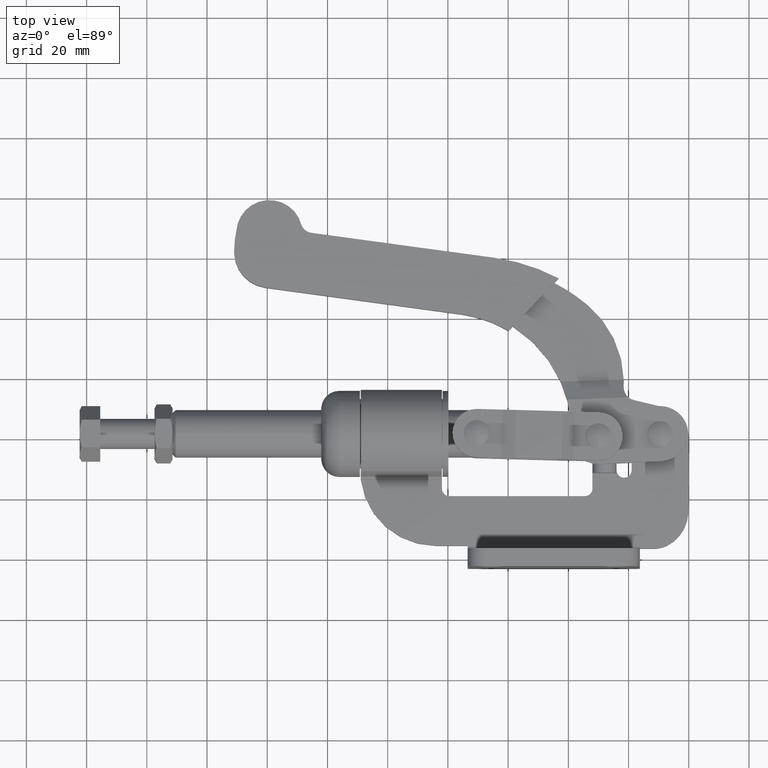
[diagram: clean part render]
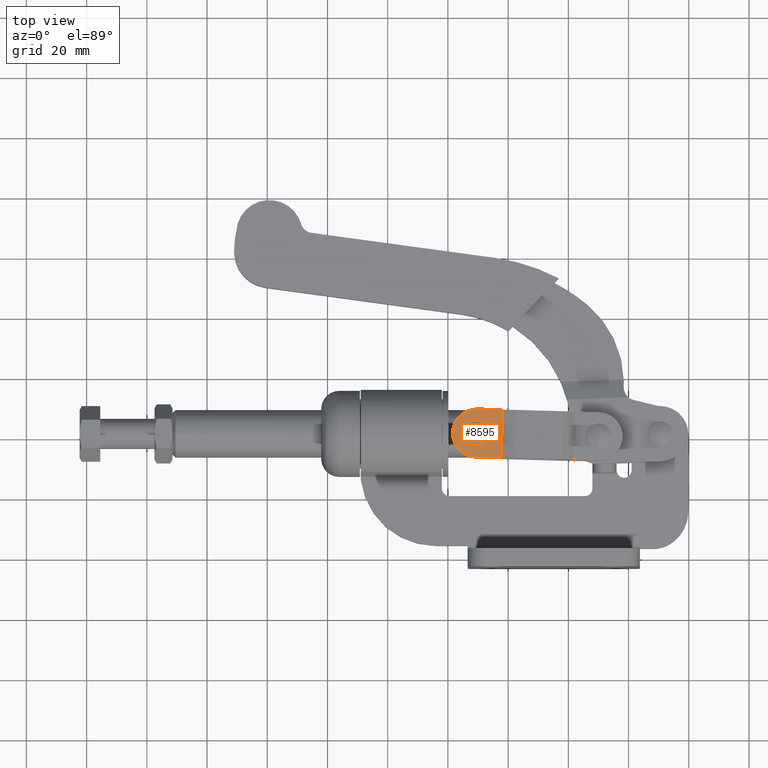
[diagram: same view with one face highlighted and labeled with its STEP entity id]
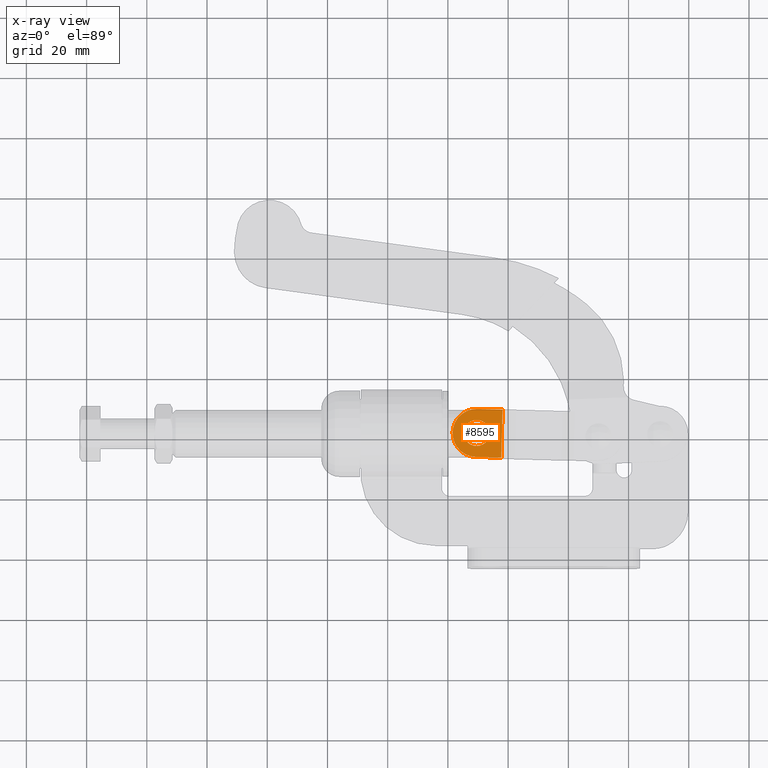
[diagram: x-ray of the same camera — body ghosted, the highlighted face saturated]
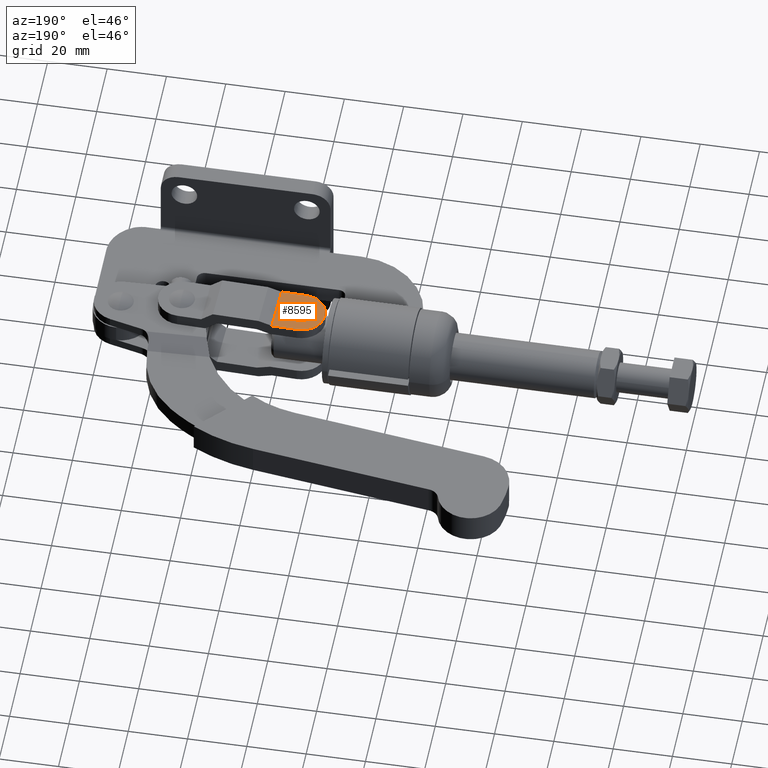
[diagram: same view with one face highlighted and labeled with its STEP entity id]
A machine part, top view. The second image highlights one B-rep face of the part: STEP entity #8595.
The next image is the same camera in x-ray: the body ghosted, the highlighted face saturated — about 0% of this face is hidden behind the body in this view.
A second angle (auxiliary view) of the same face is appended — the face is thin or edge-on in the first view.
In plain terms, the highlighted planar face has unit normal (0, 0, -1).
Its self-contained STEP definition (entity closure, byte-faithful):
#53 = ORIENTED_EDGE ( 'NONE', *, *, #1765, .F. ) ;
#160 = AXIS2_PLACEMENT_3D ( 'NONE', #5768, #1270, #6516 ) ;
#194 = ORIENTED_EDGE ( 'NONE', *, *, #4978, .T. ) ;
#202 = FACE_OUTER_BOUND ( 'NONE', #5282, .T. ) ;
#262 = AXIS2_PLACEMENT_3D ( 'NONE', #7146, #2658, #7905 ) ;
#299 = ORIENTED_EDGE ( 'NONE', *, *, #8065, .F. ) ;
#465 = CARTESIAN_POINT ( 'NONE',  ( -70.46971373799989600, 45.82012701892206500, 11.85000000000000000 ) ) ;
#714 = ORIENTED_EDGE ( 'NONE', *, *, #8456, .F. ) ;
#910 = CIRCLE ( 'NONE', #160, 4.330127018921908500 ) ;
#1085 = VERTEX_POINT ( 'NONE', #4931 ) ;
#1138 = CIRCLE ( 'NONE', #1781, 8.000000000000001800 ) ;
#1270 = DIRECTION ( 'NONE',  ( -3.235760592315507000E-015, -3.440667993655728600E-017, 1.000000000000000000 ) ) ;
#1503 = CIRCLE ( 'NONE', #262, 8.000000000000001800 ) ;
#1568 = DIRECTION ( 'NONE',  ( 3.235760592315507000E-015, 3.440667993655728600E-017, -1.000000000000000000 ) ) ;
#1765 = EDGE_CURVE ( 'NONE', #5473, #8336, #7983, .T. ) ;
#1781 = AXIS2_PLACEMENT_3D ( 'NONE', #6077, #1568, #6805 ) ;
#1874 = DIRECTION ( 'NONE',  ( -3.235760592315507000E-015, -3.440667993655728600E-017, 1.000000000000000000 ) ) ;
#1959 = LINE ( 'NONE', #8794, #7710 ) ;
#2588 = DIRECTION ( 'NONE',  ( 0.02691358024692456700, 0.9996377639916832500, 1.214801189592771400E-016 ) ) ;
#2599 = CARTESIAN_POINT ( 'NONE',  ( -61.84452790548348100, 49.26068018912577200, 11.85000000000003000 ) ) ;
#2658 = DIRECTION ( 'NONE',  ( 3.235760592315507000E-015, 3.440667993655728600E-017, -1.000000000000000000 ) ) ;
#3735 = LINE ( 'NONE', #2599, #3960 ) ;
#3752 = VERTEX_POINT ( 'NONE', #6775 ) ;
#3960 = VECTOR ( 'NONE', #4105, 1000.000000000000100 ) ;
#4097 = EDGE_CURVE ( 'NONE', #8338, #3752, #3735, .T. ) ;
#4105 = DIRECTION ( 'NONE',  ( -0.9996377639916832500, 0.02691358024692456700, -3.233662476373172700E-015 ) ) ;
#4113 = EDGE_CURVE ( 'NONE', #6571, #3752, #1503, .T. ) ;
#4128 = VECTOR ( 'NONE', #2588, 1000.000000000000100 ) ;
#4376 = LINE ( 'NONE', #6333, #4128 ) ;
#4713 = DIRECTION ( 'NONE',  ( 0.9996377639916832500, -0.02691358024692457100, 3.233662476373173100E-015 ) ) ;
#4868 = EDGE_LOOP ( 'NONE', ( #53, #6510 ) ) ;
#4931 = CARTESIAN_POINT ( 'NONE',  ( -62.27514518943427600, 33.26647596525883400, 11.85000000000002500 ) ) ;
#4978 = EDGE_CURVE ( 'NONE', #1085, #8338, #4376, .T. ) ;
#5282 = EDGE_LOOP ( 'NONE', ( #714, #299, #194, #9462, #5733 ) ) ;
#5414 = PLANE ( 'NONE',  #6316 ) ;
#5473 = VERTEX_POINT ( 'NONE', #465 ) ;
#5650 = CARTESIAN_POINT ( 'NONE',  ( -70.68502237997570600, 33.49289788806675000, 11.85000000000000000 ) ) ;
#5733 = ORIENTED_EDGE ( 'NONE', *, *, #4113, .F. ) ;
#5768 = CARTESIAN_POINT ( 'NONE',  ( -70.46971373799988200, 41.49000000000016500, 11.84999999999999800 ) ) ;
#5809 = DIRECTION ( 'NONE',  ( -0.9996377639916832500, 0.02691358024692456700, -3.233662476373172700E-015 ) ) ;
#5914 = CARTESIAN_POINT ( 'NONE',  ( -70.46971373799989600, 37.15987298107826600, 11.85000000000000000 ) ) ;
#6077 = CARTESIAN_POINT ( 'NONE',  ( -70.46971373799986800, 41.49000000000022200, 11.85000000000000300 ) ) ;
#6316 = AXIS2_PLACEMENT_3D ( 'NONE', #6930, #9209, #4713 ) ;
#6333 = CARTESIAN_POINT ( 'NONE',  ( -62.27514518943427600, 33.26647596525883400, 11.85000000000002500 ) ) ;
#6374 = CARTESIAN_POINT ( 'NONE',  ( -70.46971373799988200, 41.49000000000016500, 11.84999999999999800 ) ) ;
#6510 = ORIENTED_EDGE ( 'NONE', *, *, #8828, .F. ) ;
#6516 = DIRECTION ( 'NONE',  ( -1.000000000000000000, 0.0000000000000000000, -3.204937810639483800E-015 ) ) ;
#6571 = VERTEX_POINT ( 'NONE', #8006 ) ;
#6775 = CARTESIAN_POINT ( 'NONE',  ( -70.25440509602442800, 49.48710211193368000, 11.85000000000000000 ) ) ;
#6805 = DIRECTION ( 'NONE',  ( 0.9996377639916833600, -0.02691358024692422400, 3.252606517456512500E-015 ) ) ;
#6930 = CARTESIAN_POINT ( 'NONE',  ( -62.27514518943427600, 33.26647596525883400, 11.85000000000002500 ) ) ;
#7115 = DIRECTION ( 'NONE',  ( -1.000000000000000000, 0.0000000000000000000, -3.204937810639483800E-015 ) ) ;
#7146 = CARTESIAN_POINT ( 'NONE',  ( -70.46971373799986800, 41.49000000000022200, 11.85000000000000300 ) ) ;
#7710 = VECTOR ( 'NONE', #5809, 1000.000000000000100 ) ;
#7905 = DIRECTION ( 'NONE',  ( 0.9996377639916833600, -0.02691358024692422400, 3.252606517456512500E-015 ) ) ;
#7983 = CIRCLE ( 'NONE', #8453, 4.330127018921908500 ) ;
#8006 = CARTESIAN_POINT ( 'NONE',  ( -78.46681584993334000, 41.70530864197561300, 11.84999999999997700 ) ) ;
#8065 = EDGE_CURVE ( 'NONE', #1085, #9345, #1959, .T. ) ;
#8156 = CARTESIAN_POINT ( 'NONE',  ( -61.84452790548348100, 49.26068018912577200, 11.85000000000003000 ) ) ;
#8336 = VERTEX_POINT ( 'NONE', #5914 ) ;
#8338 = VERTEX_POINT ( 'NONE', #8156 ) ;
#8424 = FACE_BOUND ( 'NONE', #4868, .T. ) ;
#8453 = AXIS2_PLACEMENT_3D ( 'NONE', #6374, #1874, #7115 ) ;
#8456 = EDGE_CURVE ( 'NONE', #9345, #6571, #1138, .T. ) ;
#8595 = ADVANCED_FACE ( 'NONE', ( #8424, #202 ), #5414, .F. ) ;
#8794 = CARTESIAN_POINT ( 'NONE',  ( -62.27514518943427600, 33.26647596525883400, 11.85000000000002500 ) ) ;
#8828 = EDGE_CURVE ( 'NONE', #8336, #5473, #910, .T. ) ;
#9209 = DIRECTION ( 'NONE',  ( 3.235760592315505000E-015, 3.440667993655735400E-017, -1.000000000000000000 ) ) ;
#9345 = VERTEX_POINT ( 'NONE', #5650 ) ;
#9462 = ORIENTED_EDGE ( 'NONE', *, *, #4097, .T. ) ;